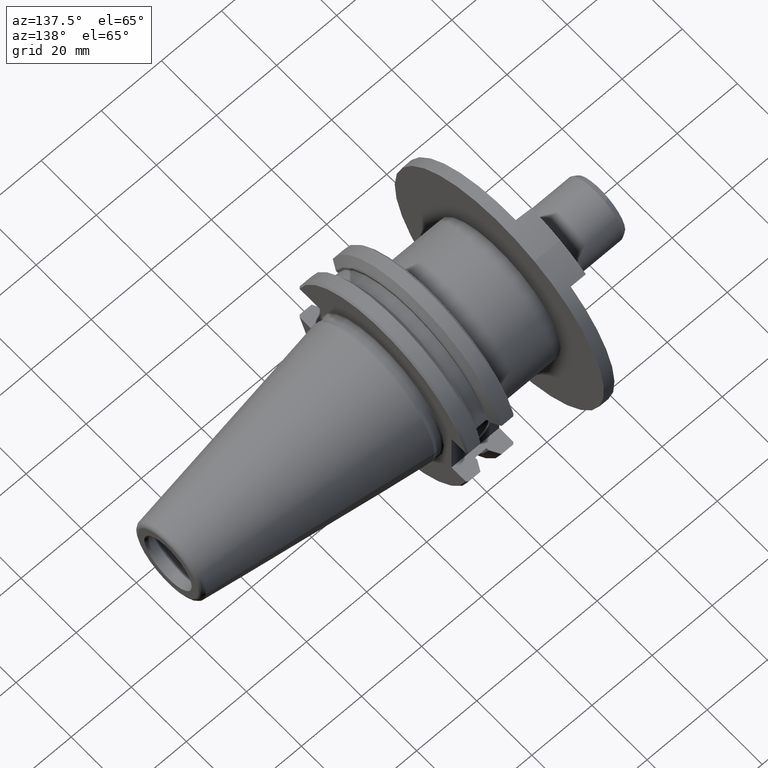
[diagram: clean part render]
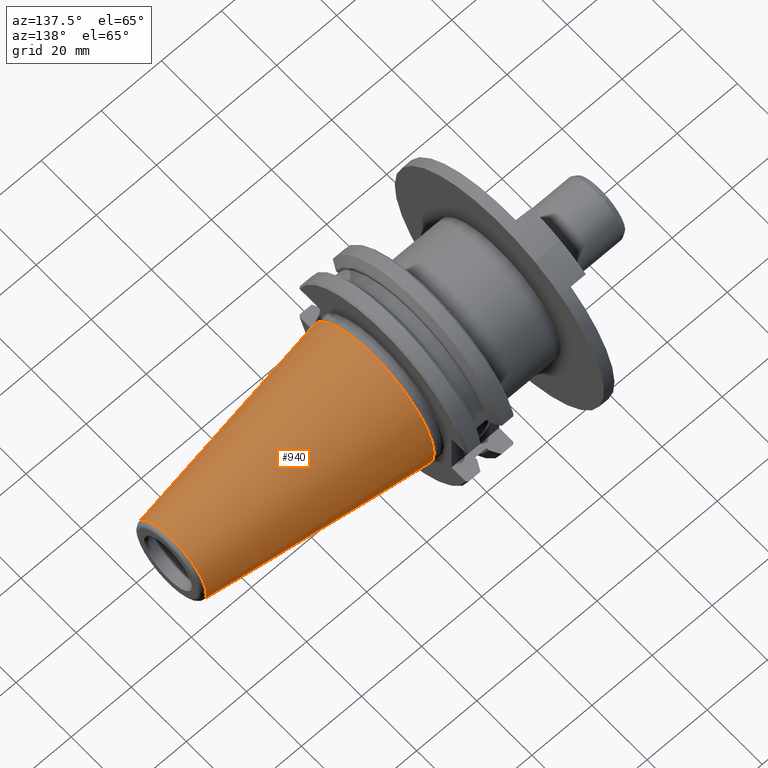
[diagram: same view with one face highlighted and labeled with its STEP entity id]
A machine part, auxiliary view. The second image highlights one B-rep face of the part: STEP entity #940.
In plain terms, the highlighted conical surface has half-angle 8.297 deg.
Its self-contained STEP definition (entity closure, byte-faithful):
#55=CONICAL_SURFACE('',#1063,17.34203190906,0.144812411498922);
#90=CIRCLE('',#1062,22.225);
#91=CIRCLE('',#1064,12.45906381812);
#92=CIRCLE('',#1065,12.45906381812);
#153=FACE_OUTER_BOUND('',#214,.T.);
#214=EDGE_LOOP('',(#772,#773,#774,#775,#776));
#304=LINE('',#1752,#364);
#364=VECTOR('',#1288,17.34203190906);
#441=VERTEX_POINT('',#1747);
#442=VERTEX_POINT('',#1751);
#443=VERTEX_POINT('',#1753);
#557=EDGE_CURVE('',#441,#441,#90,.T.);
#559=EDGE_CURVE('',#441,#442,#304,.T.);
#560=EDGE_CURVE('',#443,#442,#91,.T.);
#561=EDGE_CURVE('',#442,#443,#92,.T.);
#772=ORIENTED_EDGE('',*,*,#557,.F.);
#773=ORIENTED_EDGE('',*,*,#559,.T.);
#774=ORIENTED_EDGE('',*,*,#560,.F.);
#775=ORIENTED_EDGE('',*,*,#561,.F.);
#776=ORIENTED_EDGE('',*,*,#559,.F.);
#940=ADVANCED_FACE('',(#153),#55,.T.);
#1062=AXIS2_PLACEMENT_3D('',#1748,#1283,#1284);
#1063=AXIS2_PLACEMENT_3D('',#1750,#1286,#1287);
#1064=AXIS2_PLACEMENT_3D('',#1754,#1289,#1290);
#1065=AXIS2_PLACEMENT_3D('',#1755,#1291,#1292);
#1283=DIRECTION('center_axis',(-1.,0.,0.));
#1284=DIRECTION('ref_axis',(0.,1.,0.));
#1286=DIRECTION('center_axis',(-1.,0.,0.));
#1287=DIRECTION('ref_axis',(0.,-1.,0.));
#1288=DIRECTION('',(0.98953299358046,-0.144306807239621,1.76724869581176E-17));
#1289=DIRECTION('center_axis',(1.,0.,0.));
#1290=DIRECTION('ref_axis',(0.,1.,0.));
#1291=DIRECTION('center_axis',(1.,0.,0.));
#1292=DIRECTION('ref_axis',(0.,1.,0.));
#1747=CARTESIAN_POINT('',(42.0000000000009,22.2249999999967,2.72177751110459E-15));
#1748=CARTESIAN_POINT('Origin',(42.,0.,0.));
#1750=CARTESIAN_POINT('Origin',(75.48323010543,0.,0.));
#1751=CARTESIAN_POINT('',(108.9664602109,12.45906381812,0.));
#1752=CARTESIAN_POINT('',(75.48323010543,17.34203190906,-2.12378638681416E-15));
#1753=CARTESIAN_POINT('',(108.9664602109,-12.45906381812,1.52579526252333E-15));
#1754=CARTESIAN_POINT('Origin',(108.9664602109,0.,0.));
#1755=CARTESIAN_POINT('Origin',(108.9664602109,0.,0.));